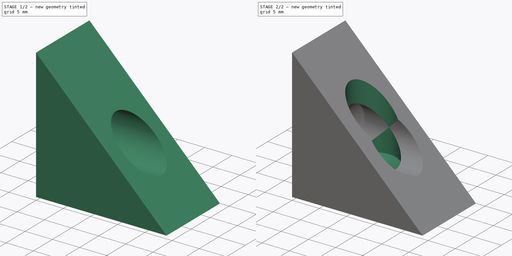
[diagram: build sequence overview — one tinted view per stage of 2, left to right]
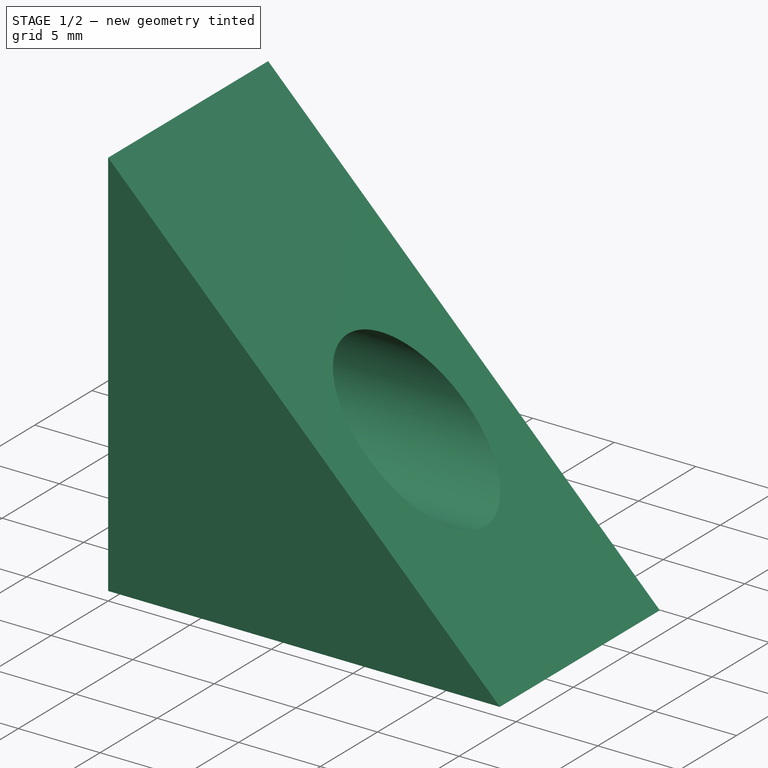
[diagram: stage 1 of 2 — iso view after this stage's code; geometry added in this stage tinted green]
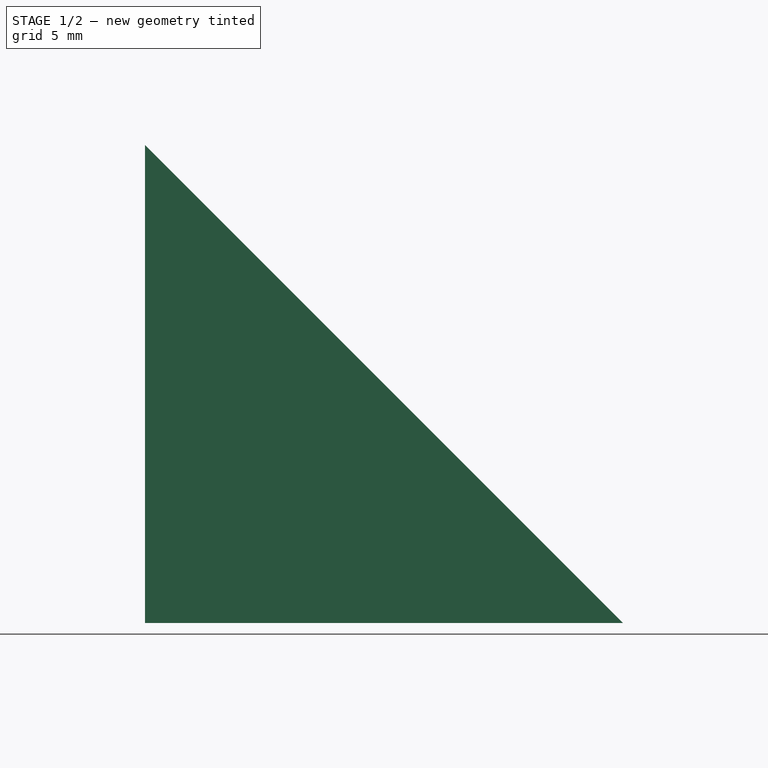
[diagram: stage 1 of 2 — front view after this stage's code; geometry added in this stage tinted green]
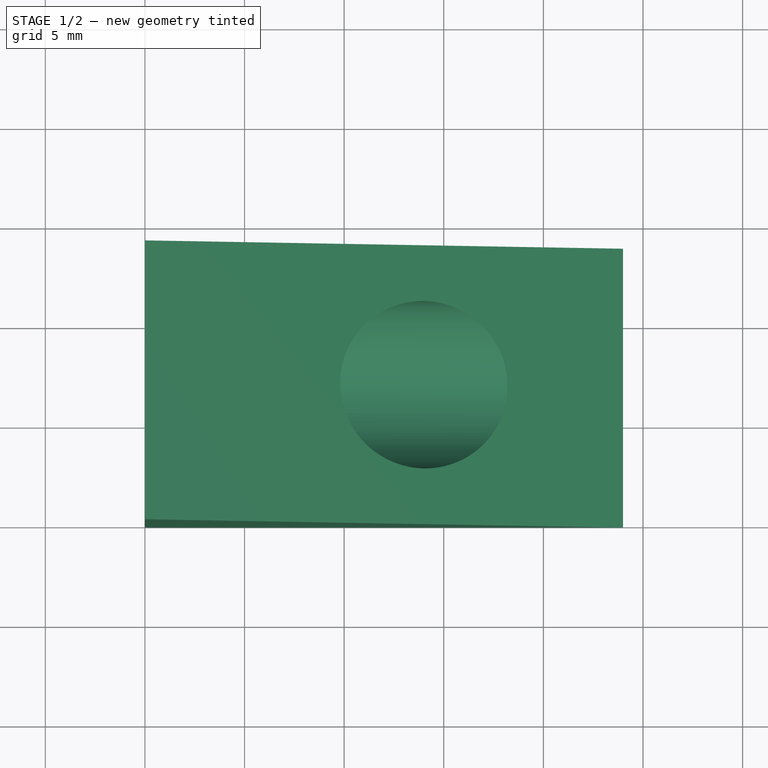
[diagram: stage 1 of 2 — top view after this stage's code; geometry added in this stage tinted green]
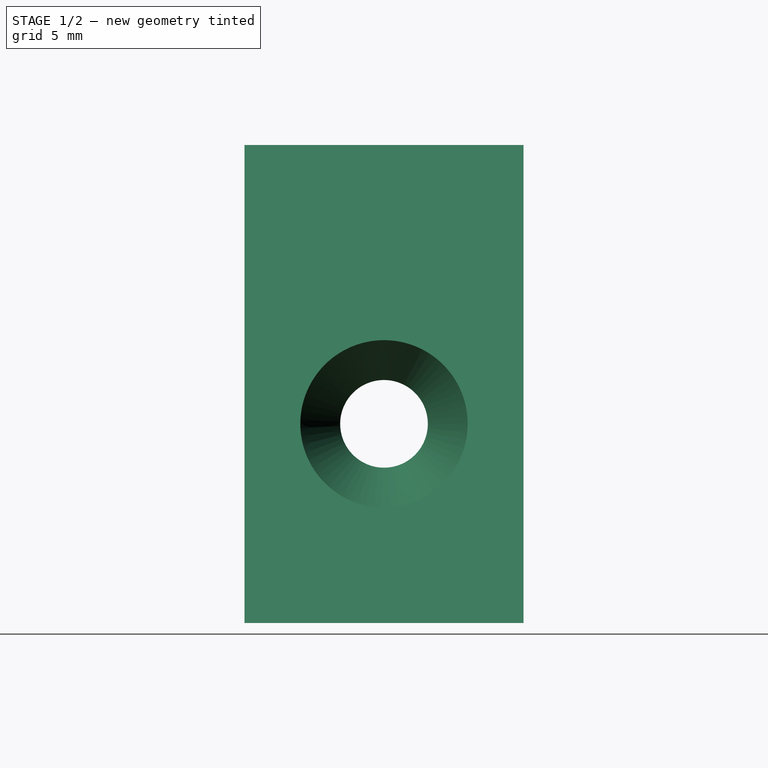
[diagram: stage 1 of 2 — right view after this stage's code; geometry added in this stage tinted green]
FCSTD DOCUMENT  (FreeCAD 0.18R13971 (Git))
Label: 06_527_z-corner-bracket
License: All rights reserved
LicenseURL: http://en.wikipedia.org/wiki/All_rights_reserved
objects: Sketcher::SketchObject×9, PartDesign::SubtractiveLoft×2, Spreadsheet::Sheet×1, PartDesign::Pad×1, PartDesign::Body×1
note: 16 computed .brp shape members not serialized (recipe doc carries the construction recipe); baked Part::Feature solids carry a one-line shape summary decoded from their .brp

FEATURE [Spreadsheet::Sheet] Spreadsheet  label="sheet1"
  cells = A1=M4Clearance; B1(M4Clearance)=4.4000000000000004; A2=M4ConterSinkDepth; B2(M4ConterSinkDepth)=3.5; A3=dy; B3(dy)=14; A4=dx; B4(dx)=24; A5=dz; B5(dz)=24; A6=Hole0X; B6(Hole0X)=10; A7=Hole0Y; B7(Hole0Y)==dy / 2; A8=Hole1Y; B8(Hole1Y)==Hole0Y; A9=Hole1Z; B9(Hole1Z)==Hole0X
FEATURE [Sketcher::SketchObject] Sketch
  MapMode = 5
  Placement = pos=(0,0,0) rot=(1,0,0;1.5708rad)
  Support = -> [XZ_Plane]
  expr: Constraints[7] = sheet1.dz
  sketch-geometry (3):
    g0: LineSegment StartX=0 StartY=24 StartZ=0 EndX=0 EndY=0 EndZ=0
    g1: LineSegment StartX=0 StartY=0 StartZ=0 EndX=24 EndY=0 EndZ=0
    g2: LineSegment StartX=24 StartY=0 StartZ=0 EndX=0 EndY=24 EndZ=0
  constraints (8):
    c: Coincident(g0,g1)
    c: Coincident(g1,g2)
    c: Coincident(g0,g2)
    c: Coincident(g0,g-1)
    c: Vertical(g0)
    c: Horizontal(g1)
    c: Equal(g0,g1)
    c: Distance(g0) = 24
FEATURE [PartDesign::Pad] Pad
  Length = 14
  Length2 = 100
  Placement = pos=(0,0,0) rot=(1,0,0;1.5708rad)
  Profile = -> Sketch
  Reversed = true
  Type = 0
  expr: Length = sheet1.dy
FEATURE [Sketcher::SketchObject] Sketch001
  MapMode = 5
  Placement = pos=(0,0,0) rot=(0.57735,0.57735,0.57735;2.0944rad)
  Support = -> [YZ_Plane]
  expr: Constraints[2] = sheet1.Hole1Z
  expr: Constraints[1] = sheet1.M4Clearance / 2
  expr: Constraints[0] = sheet1.Hole1Y
  sketch-geometry (1):
    g0: Circle CenterX=7 CenterY=10 CenterZ=0 NormalX=0 NormalY=0 NormalZ=1 AngleXU=0 Radius=2.2
  constraints (3):
    c: DistanceX(g-2,g0) = 7
    c: Radius(g0) = 2.2
    c: DistanceY(g-1,g0) = 10
FEATURE [Sketcher::SketchObject] Sketch002
  AttachmentOffset = pos=(0,0,3.5) rot=(0,0,1;0rad)
  MapMode = 5
  Placement = pos=(3.5,0,0) rot=(0.57735,0.57735,0.57735;2.0944rad)
  Support = -> [YZ_Plane]
  expr: AttachmentOffset.Base.z = sheet1.M4ConterSinkDepth
  expr: Constraints[2] = sheet1.Hole1Z
  expr: Constraints[1] = sheet1.M4Clearance / 2
  expr: Constraints[0] = sheet1.Hole1Y
  sketch-geometry (1):
    g0: Circle CenterX=7 CenterY=10 CenterZ=0 NormalX=0 NormalY=0 NormalZ=1 AngleXU=0 Radius=2.2
  constraints (3):
    c: DistanceX(g-2,g0) = 7
    c: Radius(g0) = 2.2
    c: DistanceY(g-1,g0) = 10
FEATURE [Sketcher::SketchObject] Sketch003
  AttachmentOffset = pos=(0,0,5.5) rot=(0,0,1;0rad)
  MapMode = 5
  Placement = pos=(5.5,0,0) rot=(0.57735,0.57735,0.57735;2.0944rad)
  Support = -> [YZ_Plane]
  expr: AttachmentOffset.Base.z = sheet1.M4ConterSinkDepth + 2
  expr: Constraints[2] = sheet1.Hole1Z
  expr: Constraints[1] = sheet1.M4Clearance / 2 + 2
  expr: Constraints[0] = sheet1.Hole1Y
  sketch-geometry (1):
    g0: Circle CenterX=7 CenterY=10 CenterZ=0 NormalX=0 NormalY=0 NormalZ=1 AngleXU=0 Radius=4.2
  constraints (3):
    c: DistanceX(g-2,g0) = 7
    c: Radius(g0) = 4.2
    c: DistanceY(g-1,g0) = 10
FEATURE [Sketcher::SketchObject] Sketch004
  AttachmentOffset = pos=(0,0,24) rot=(0,0,1;0rad)
  MapMode = 5
  Placement = pos=(24,0,0) rot=(0.57735,0.57735,0.57735;2.0944rad)
  Support = -> [YZ_Plane]
  expr: AttachmentOffset.Base.z = sheet1.dx
  expr: Constraints[2] = sheet1.Hole1Z
  expr: Constraints[1] = sheet1.M4Clearance / 2 + 2
  expr: Constraints[0] = sheet1.Hole1Y
  sketch-geometry (1):
    g0: Circle CenterX=7 CenterY=10 CenterZ=0 NormalX=0 NormalY=0 NormalZ=1 AngleXU=0 Radius=4.2
  constraints (3):
    c: DistanceX(g-2,g0) = 7
    c: Radius(g0) = 4.2
    c: DistanceY(g-1,g0) = 10
FEATURE [PartDesign::SubtractiveLoft] SubtractiveLoft
  BaseFeature = -> Pad
  Closed = true
  Placement = pos=(0,0,0) rot=(1,0,0;1.5708rad)
  Profile = -> Sketch001
  Ruled = true
  Sections = -> [Sketch002,Sketch003,Sketch004]
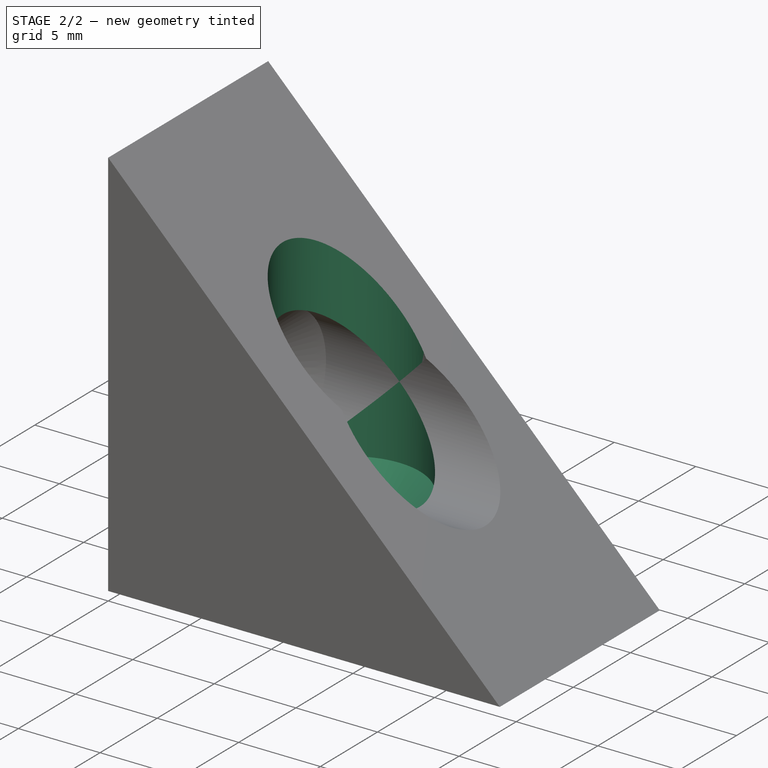
[diagram: stage 2 of 2 — iso view after this stage's code; geometry added in this stage tinted green]
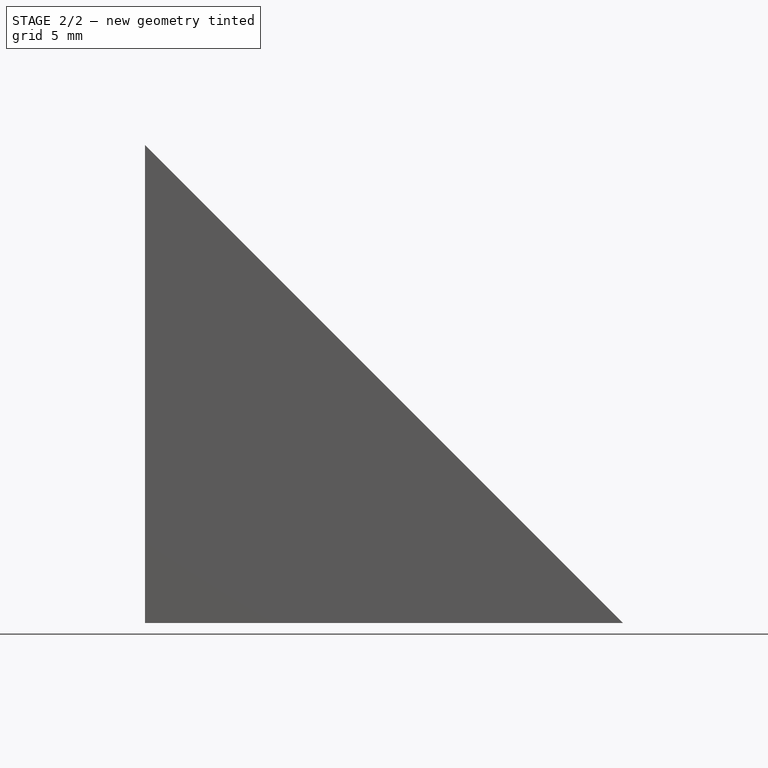
[diagram: stage 2 of 2 — front view after this stage's code; geometry added in this stage tinted green]
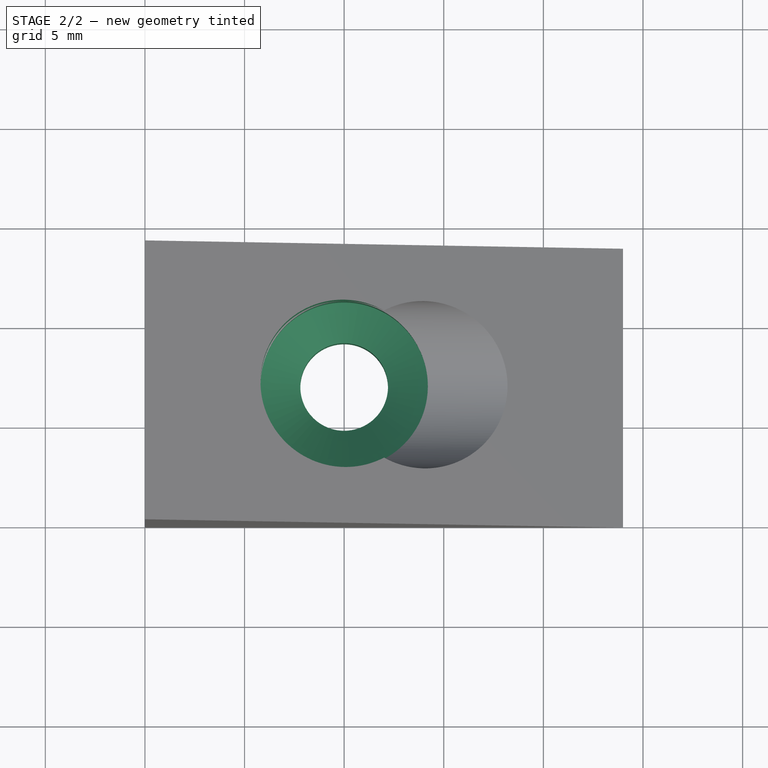
[diagram: stage 2 of 2 — top view after this stage's code; geometry added in this stage tinted green]
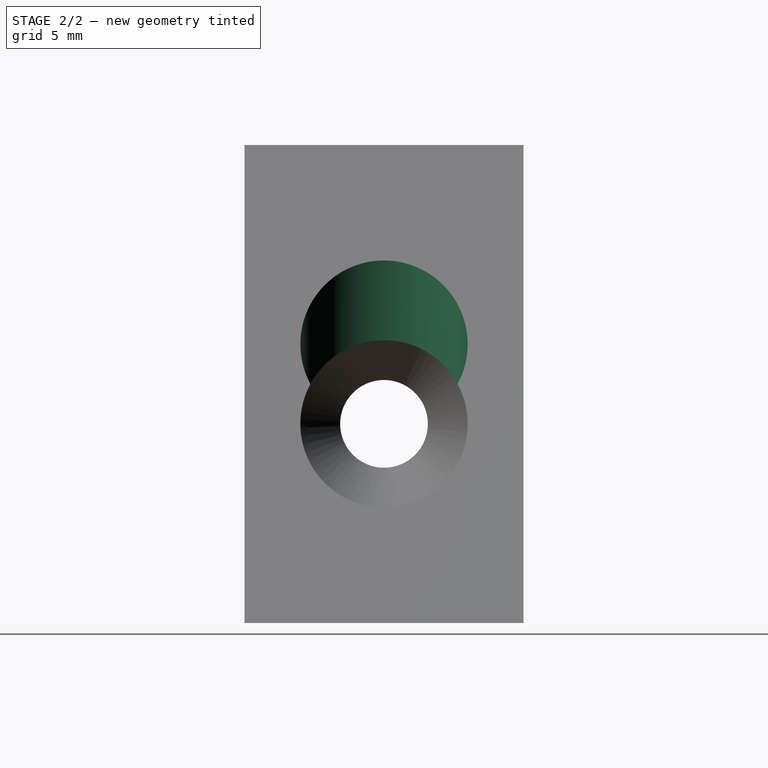
[diagram: stage 2 of 2 — right view after this stage's code; geometry added in this stage tinted green]
FEATURE [Sketcher::SketchObject] Sketch005
  MapMode = 5
  Support = -> [XY_Plane]
  expr: Constraints[2] = sheet1.Hole0Y
  expr: Constraints[1] = sheet1.M4Clearance / 2
  expr: Constraints[0] = sheet1.Hole0X
  sketch-geometry (1):
    g0: Circle CenterX=10 CenterY=7 CenterZ=0 NormalX=0 NormalY=0 NormalZ=1 AngleXU=0 Radius=2.2
  constraints (3):
    c: DistanceX(g-2,g0) = 10
    c: Radius(g0) = 2.2
    c: DistanceY(g-1,g0) = 7
FEATURE [Sketcher::SketchObject] Sketch006
  AttachmentOffset = pos=(0,0,24) rot=(0,0,1;0rad)
  MapMode = 5
  Placement = pos=(0,0,24) rot=(0,0,1;0rad)
  Support = -> [XY_Plane]
  expr: AttachmentOffset.Base.z = sheet1.dx
  expr: Constraints[2] = sheet1.Hole0Y
  expr: Constraints[1] = sheet1.M4Clearance / 2 + 2
  expr: Constraints[0] = sheet1.Hole0X
  sketch-geometry (1):
    g0: Circle CenterX=10 CenterY=7 CenterZ=0 NormalX=0 NormalY=0 NormalZ=1 AngleXU=0 Radius=4.2
  constraints (3):
    c: DistanceX(g-2,g0) = 10
    c: Radius(g0) = 4.2
    c: DistanceY(g-1,g0) = 7
FEATURE [Sketcher::SketchObject] Sketch007
  AttachmentOffset = pos=(0,0,3.5) rot=(0,0,1;0rad)
  MapMode = 5
  Placement = pos=(0,0,3.5) rot=(0,0,1;0rad)
  Support = -> [XY_Plane]
  expr: AttachmentOffset.Base.z = sheet1.M4ConterSinkDepth
  expr: Constraints[2] = sheet1.Hole0Y
  expr: Constraints[1] = sheet1.M4Clearance / 2
  expr: Constraints[0] = sheet1.Hole0X
  sketch-geometry (1):
    g0: Circle CenterX=10 CenterY=7 CenterZ=0 NormalX=0 NormalY=0 NormalZ=1 AngleXU=0 Radius=2.2
  constraints (3):
    c: DistanceX(g-2,g0) = 10
    c: Radius(g0) = 2.2
    c: DistanceY(g-1,g0) = 7
FEATURE [Sketcher::SketchObject] Sketch008
  AttachmentOffset = pos=(0,0,5.5) rot=(0,0,1;0rad)
  MapMode = 5
  Placement = pos=(0,0,5.5) rot=(0,0,1;0rad)
  Support = -> [XY_Plane]
  expr: AttachmentOffset.Base.z = sheet1.M4ConterSinkDepth + 2
  expr: Constraints[2] = sheet1.Hole0Y
  expr: Constraints[1] = sheet1.M4Clearance / 2 + 2
  expr: Constraints[0] = sheet1.Hole0X
  sketch-geometry (1):
    g0: Circle CenterX=10 CenterY=7 CenterZ=0 NormalX=0 NormalY=0 NormalZ=1 AngleXU=0 Radius=4.2
  constraints (3):
    c: DistanceX(g-2,g0) = 10
    c: Radius(g0) = 4.2
    c: DistanceY(g-1,g0) = 7
FEATURE [PartDesign::SubtractiveLoft] SubtractiveLoft001
  BaseFeature = -> SubtractiveLoft
  Closed = true
  Placement = pos=(0,0,0) rot=(1,0,0;1.5708rad)
  Profile = -> Sketch005
  Ruled = true
  Sections = -> [Sketch007,Sketch008,Sketch006]
FEATURE [PartDesign::Body] Body
  Group = -> [Sketch,Pad,Sketch001,Sketch002,Sketch003,Sketch004,SubtractiveLoft,Sketch005,Sketch006,Sketch007,Sketch008,SubtractiveLoft001]
  Origin = -> Origin
  Tip = -> SubtractiveLoft001
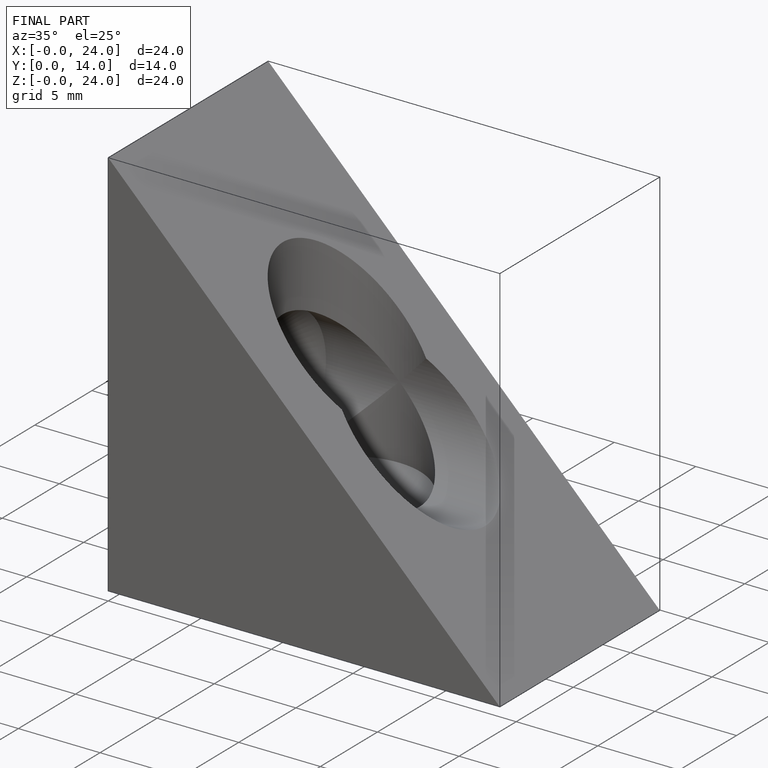
[diagram: finished part — iso view with bounding-box wireframe]
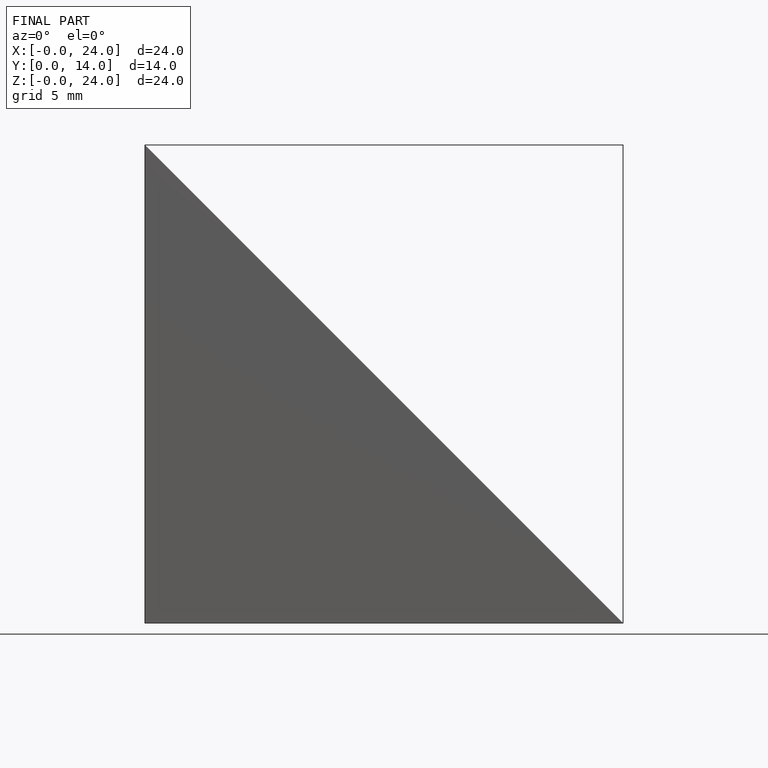
[diagram: finished part — front view with bounding-box wireframe]
